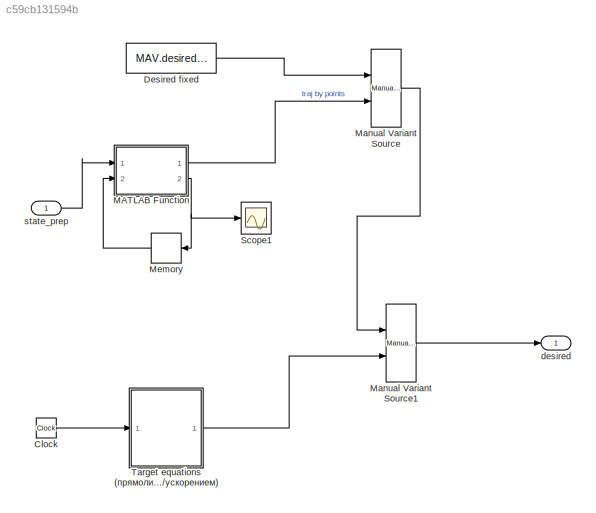
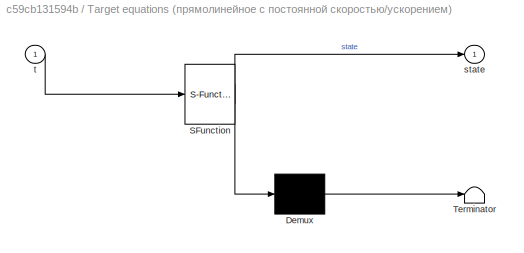
MODEL slx_c59cb131594b
KIND model
CONFIG AbsTol = auto
CONFIG EnableMultiTasking = off
CONFIG FixedStep = auto
CONFIG MaxStep = auto
CONFIG MinStep = auto
CONFIG RelTol = 1e-3
CONFIG SampleTimeConstraint = Unconstrained
CONFIG Solver = VariableStepAuto
CONFIG SolverName = VariableStepAuto
CONFIG StartTime = 0.0
CONFIG StopTime = 10.0
BLOCK [Clock] Clock
BLOCK [Constant] Desired fixed
  Value = MAV.desired_fixed
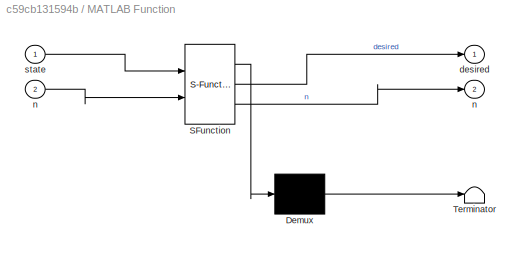
BLOCK [SubSystem] MATLAB Function
  ErrorFcn = Stateflow.Translate.translate
  PermitHierarchicalResolution = ExplicitOnly
  Ports = [2, 2]
  RequestExecContextInheritance = off
  SFBlockType = MATLAB Function
  TreatAsAtomicUnit = on
BLOCK [Demux] MATLAB Function/ Demux 
  Outputs = 1
  Ports = [1, 1]
BLOCK [S-Function] MATLAB Function/ SFunction 
  EnableBusSupport = on
  FunctionName = sf_sfun
  PortCounts = [2 3]
  Ports = [2, 3]
  SFcnIsStateOwnerBlock = off
  SFunctionDeploymentMode = off
  Tag = Stateflow S-Function 8
BLOCK [Terminator] MATLAB Function/ Terminator 
BLOCK [Outport] MATLAB Function/desired
BLOCK [Outport] MATLAB Function/n
  Port = 2
BLOCK [Inport] MATLAB Function/n 
  Port = 2
BLOCK [Inport] MATLAB Function/state
BLOCK [Reference] Manual Variant Source  REF=simulink/Signal
Routing/Manual
Variant Source
  Ports = [2, 1]
  SourceBlock = simulink/Signal\nRouting/Manual\nVariant Source
  SourceProductBaseCode = SL
  SourceType = ManualVariantSource
BLOCK [Reference] Manual Variant Source1  REF=simulink/Signal
Routing/Manual
Variant Source
  Ports = [2, 1]
  SourceBlock = simulink/Signal\nRouting/Manual\nVariant Source
  SourceProductBaseCode = SL
  SourceType = ManualVariantSource
BLOCK [Memory] Memory
  InitialCondition = 1
  NameLocation = top
BLOCK [Scope] Scope1
  Floating = off
  NumInputPorts = 1
  Ports = [1]
  ScopeSpecificationString = Simulink.scopes.TimeScopeBlockCfg('CurrentConfiguration', extmgr.ConfigurationSet(extmgr.Configuration('Core','General UI',true),extmgr.Configuration('Core','Source UI',true),extmgr.Configuration('Sources','WiredSimulink',true),extmgr.Configuration('Visuals','Time Domain',true,'SerializedDisplays',{struct('MinYLimReal','-0.5','MaxYLimReal','4.5','YLabelReal','','MinYLimMag','0.00000','MaxYLimMag',...<+1313ch>
BLOCK [SubSystem] Target equations (прямолинейное с постоянной скоростью//ускорением)
  ErrorFcn = Stateflow.Translate.translate
  PermitHierarchicalResolution = ExplicitOnly
  Ports = [1, 1]
  RequestExecContextInheritance = off
  SFBlockType = MATLAB Function
  TreatAsAtomicUnit = on
BLOCK [Demux] Target equations (прямолинейное с постоянной скоростью//ускорением)/ Demux 
  Outputs = 1
  Ports = [1, 1]
BLOCK [S-Function] Target equations (прямолинейное с постоянной скоростью//ускорением)/ SFunction 
  EnableBusSupport = on
  FunctionName = sf_sfun
  Parameters = TARGET
  PortCounts = [1 2]
  Ports = [1, 2]
  SFcnIsStateOwnerBlock = off
  SFunctionDeploymentMode = off
  Tag = Stateflow S-Function 4
BLOCK [Terminator] Target equations (прямолинейное с постоянной скоростью//ускорением)/ Terminator 
BLOCK [Outport] Target equations (прямолинейное с постоянной скоростью//ускорением)/state
BLOCK [Inport] Target equations (прямолинейное с постоянной скоростью//ускорением)/t
BLOCK [Outport] desired
  PortDimensions = [3; 3]
BLOCK [Inport] state_prep
  PortDimensions = [15 1]
LINE Clock:1 -> Target equations (прямолинейное с постоянной скоростью//ускорением):1
LINE Desired fixed:1 -> Manual Variant Source:1
LINE MATLAB Function:1 -> Manual Variant Source:2
NET MATLAB Function:2 -> Memory:1, Scope1:1
LINE Manual Variant Source1:1 -> desired:1
LINE Manual Variant Source:1 -> Manual Variant Source1:1
LINE Memory:1 -> MATLAB Function:2
LINE Target equations (прямолинейное с постоянной скоростью//ускорением):1 -> Manual Variant Source1:2
LINE state_prep:1 -> MATLAB Function:1
note: NET lines group one-source signal fan-out (src -> all destinations, sorted); 1:1 wires keep LINE
CHART Target equations
 (прямолинейное с постоянной
 скоростью//ускорением) states=1 transitions=1
  STATE_LABEL 'eML_blk_kernel()'
  STATE_LABEL "SCRIPT:\n function state   = fcn(t, TARGET)\n    t0 = TARGET.t0;\n    t = max(0, t - t0);\n    r = TARGET.r0 + TARGET.v0*t + TARGET.a0*t.^2/2;\n    dr = TARGET.v0 + TARGET.a0*t;\n    ddr = [0 0 0]';\n    \n%     R = 300;\n%     f = 1/180; % 1/об\n%     r = [\n%         R*cos(2*pi*f*t);\n%         0;\n%         R*sin(2*pi*f*t) \n%     ];\n%     dr = [\n%         -2*pi*f*R*sin(2*pi*f*t);\n%         0;\n%         2*pi...<+63ch>"
CHART MATLAB Function states=1 transitions=1
  STATE_LABEL 'eML_blk_kernel()'
  STATE_LABEL "SCRIPT:\nfunction [desired, n] = fcn(state, n)\n\nx = state(1); y = state(2); z = state(3);\nr = [x y z]';\n\n% select r_desired_prev\na = 3;\nr_des = get_square_traj(n);\n% r_des = get_circle_traj(n);\nif norm(r_des - r) < 0.5*(a/10)\n    n = n + 1;\n%     r_des = get_circle_traj(n);\n    r_des = get_square_traj(n);\nend\n\ndesired = [r_des [3 0 0]' [0 0 0]'];\n\nend\n\nfunction r_des = get_circle_traj(n)\n    R = 10...<+306ch>"
CHART  states=0 transitions=0
CHART  states=0 transitions=0
